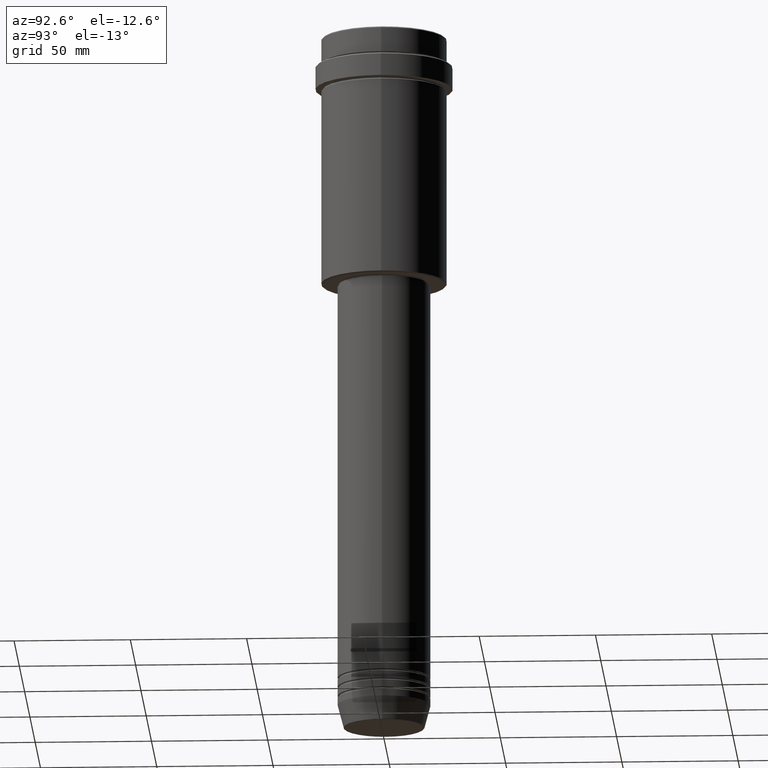
[diagram: clean part render]
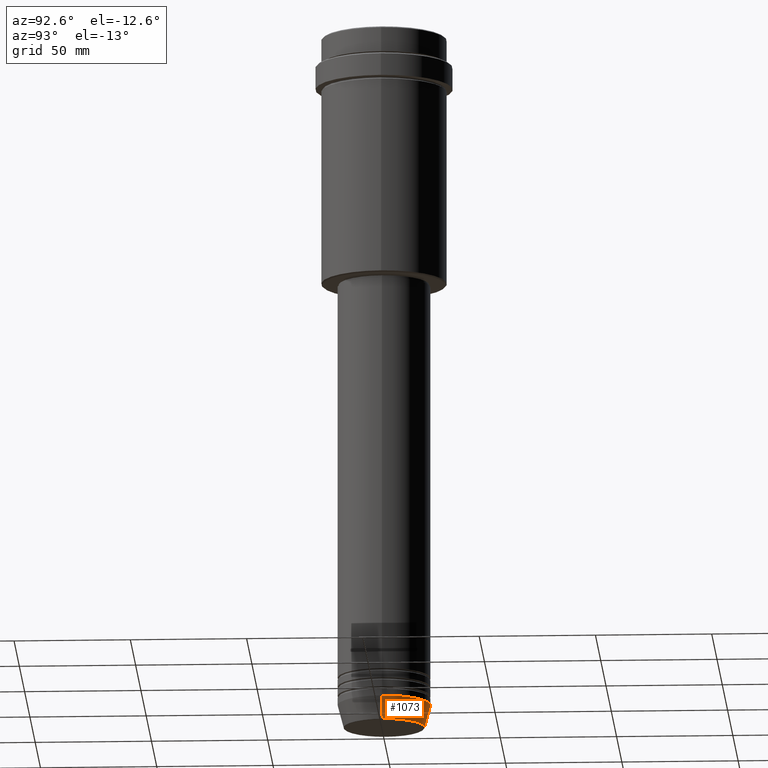
[diagram: same view with one face highlighted and labeled with its STEP entity id]
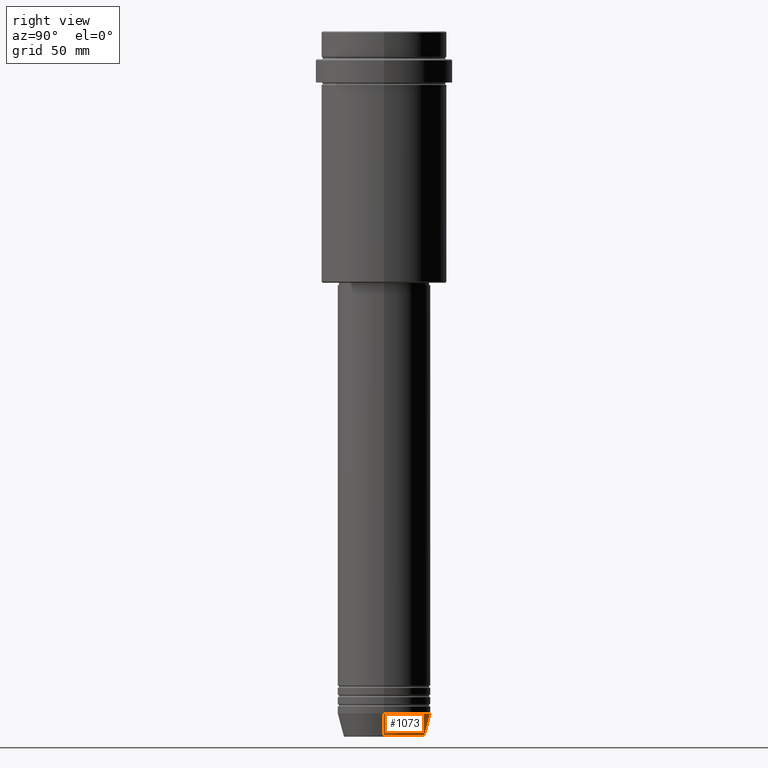
[diagram: same view with one face highlighted and labeled with its STEP entity id]
A machine part, auxiliary view. The second image highlights one B-rep face of the part: STEP entity #1073.
A second angle (right view) of the same face is appended — the face is thin or edge-on in the first view.
In plain terms, the highlighted conical surface has half-angle 15 deg.
Its self-contained STEP definition (entity closure, byte-faithful):
#21 = EDGE_CURVE ( 'NONE', #646, #168, #572, .T. ) ;
#71 = EDGE_LOOP ( 'NONE', ( #650, #875, #779, #237 ) ) ;
#95 = CONICAL_SURFACE ( 'NONE', #1150, 20.00000000000000000, 0.2617993877991499074 ) ;
#146 = DIRECTION ( 'NONE',  ( -0.000000000000000000, -0.000000000000000000, 1.000000000000000000 ) ) ;
#168 = VERTEX_POINT ( 'NONE', #472 ) ;
#203 = CARTESIAN_POINT ( 'NONE',  ( -17.41980749484382684, 2.291302373663531915E-15, -302.6294095225512706 ) ) ;
#237 = ORIENTED_EDGE ( 'NONE', *, *, #767, .F. ) ;
#262 = CARTESIAN_POINT ( 'NONE',  ( 0.000000000000000000, 0.000000000000000000, -302.6294095225512706 ) ) ;
#273 = CARTESIAN_POINT ( 'NONE',  ( -20.00000000000000000, 2.449293598294706513E-15, -293.0000000000000568 ) ) ;
#401 = DIRECTION ( 'NONE',  ( -0.000000000000000000, -0.000000000000000000, 1.000000000000000000 ) ) ;
#404 = CIRCLE ( 'NONE', #593, 17.41980749484382684 ) ;
#407 = VECTOR ( 'NONE', #731, 1000.000000000000114 ) ;
#472 = CARTESIAN_POINT ( 'NONE',  ( -20.00000000000000000, 2.449293598294706513E-15, -293.0000000000000568 ) ) ;
#496 = AXIS2_PLACEMENT_3D ( 'NONE', #959, #401, #1375 ) ;
#560 = CARTESIAN_POINT ( 'NONE',  ( 17.41980749484382684, 0.000000000000000000, -302.6294095225512706 ) ) ;
#566 = CARTESIAN_POINT ( 'NONE',  ( 20.00000000000000000, 0.000000000000000000, -293.0000000000000568 ) ) ;
#572 = CIRCLE ( 'NONE', #496, 20.00000000000000000 ) ;
#593 = AXIS2_PLACEMENT_3D ( 'NONE', #262, #146, #809 ) ;
#617 = VERTEX_POINT ( 'NONE', #560 ) ;
#646 = VERTEX_POINT ( 'NONE', #566 ) ;
#650 = ORIENTED_EDGE ( 'NONE', *, *, #663, .T. ) ;
#663 = EDGE_CURVE ( 'NONE', #617, #979, #404, .T. ) ;
#681 = DIRECTION ( 'NONE',  ( 1.000000000000000000, 0.000000000000000000, 0.000000000000000000 ) ) ;
#731 = DIRECTION ( 'NONE',  ( -0.2588190451025211836, 3.169619151431770488E-17, 0.9659258262890680902 ) ) ;
#767 = EDGE_CURVE ( 'NONE', #617, #646, #1135, .T. ) ;
#779 = ORIENTED_EDGE ( 'NONE', *, *, #21, .F. ) ;
#809 = DIRECTION ( 'NONE',  ( 1.000000000000000000, 0.000000000000000000, 0.000000000000000000 ) ) ;
#875 = ORIENTED_EDGE ( 'NONE', *, *, #1259, .T. ) ;
#907 = CARTESIAN_POINT ( 'NONE',  ( 0.000000000000000000, 0.000000000000000000, -293.0000000000000568 ) ) ;
#918 = CARTESIAN_POINT ( 'NONE',  ( 20.00000000000000000, 0.000000000000000000, -293.0000000000000568 ) ) ;
#959 = CARTESIAN_POINT ( 'NONE',  ( 0.000000000000000000, 0.000000000000000000, -293.0000000000000568 ) ) ;
#969 = VECTOR ( 'NONE', #1280, 1000.000000000000114 ) ;
#979 = VERTEX_POINT ( 'NONE', #203 ) ;
#1026 = DIRECTION ( 'NONE',  ( -0.000000000000000000, -0.000000000000000000, 1.000000000000000000 ) ) ;
#1073 = ADVANCED_FACE ( 'NONE', ( #1296 ), #95, .T. ) ;
#1135 = LINE ( 'NONE', #918, #969 ) ;
#1150 = AXIS2_PLACEMENT_3D ( 'NONE', #907, #1026, #681 ) ;
#1159 = LINE ( 'NONE', #273, #407 ) ;
#1259 = EDGE_CURVE ( 'NONE', #979, #168, #1159, .T. ) ;
#1280 = DIRECTION ( 'NONE',  ( 0.2588190451025211836, 0.000000000000000000, 0.9659258262890680902 ) ) ;
#1296 = FACE_OUTER_BOUND ( 'NONE', #71, .T. ) ;
#1375 = DIRECTION ( 'NONE',  ( 1.000000000000000000, 0.000000000000000000, 0.000000000000000000 ) ) ;